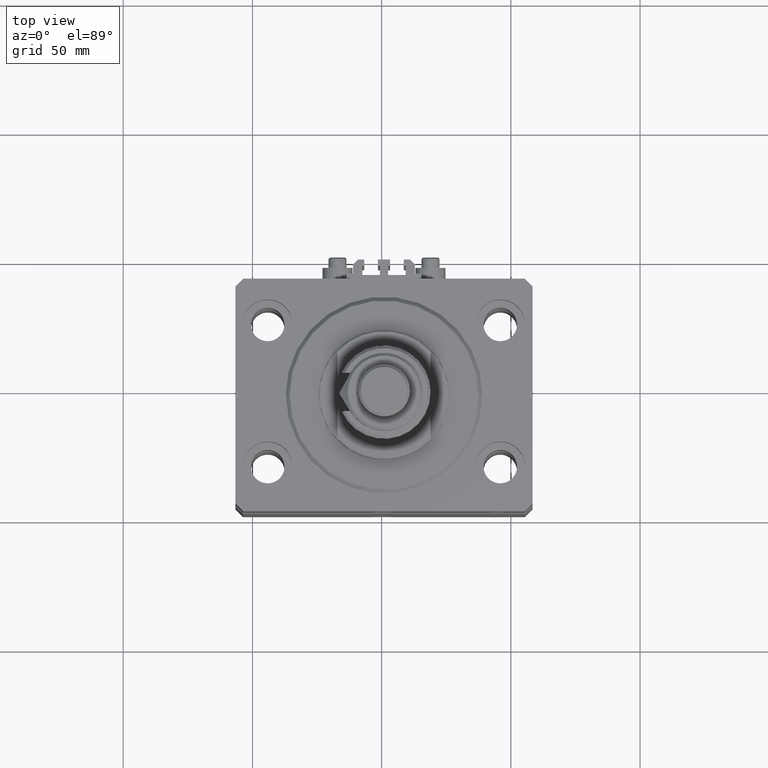
[diagram: clean part render]
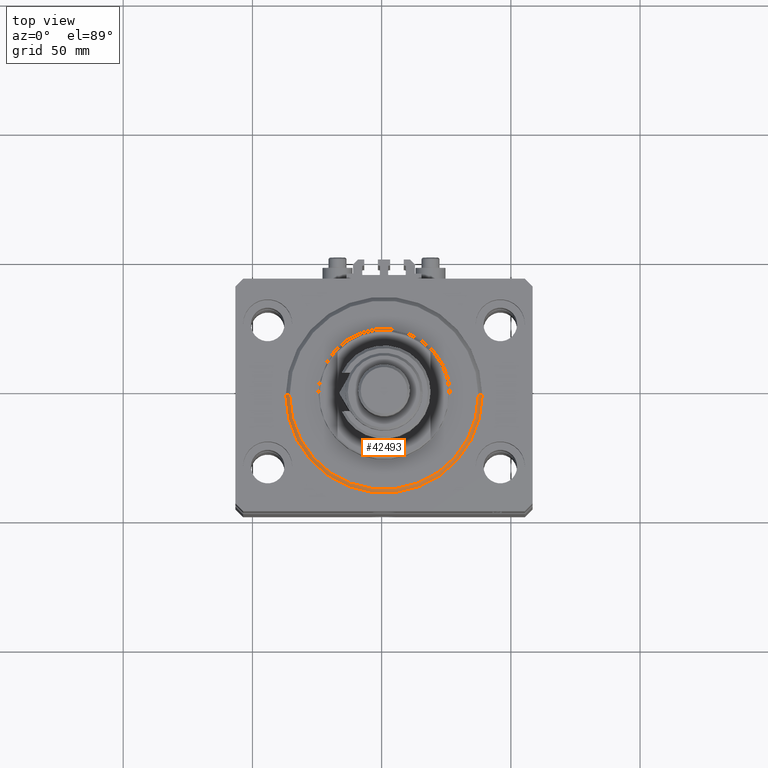
[diagram: same view with one face highlighted and labeled with its STEP entity id]
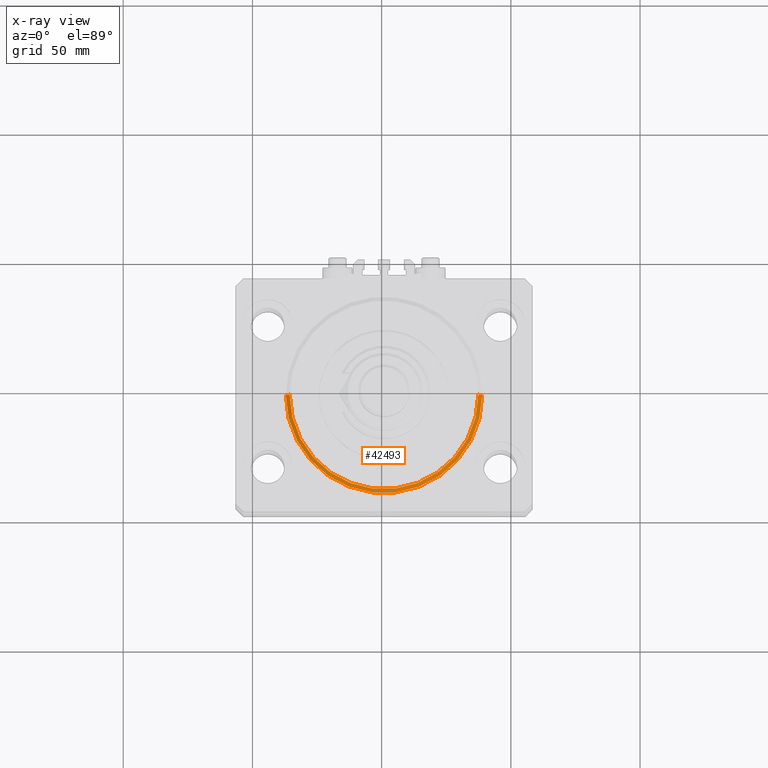
[diagram: x-ray of the same camera — body ghosted, the highlighted face saturated]
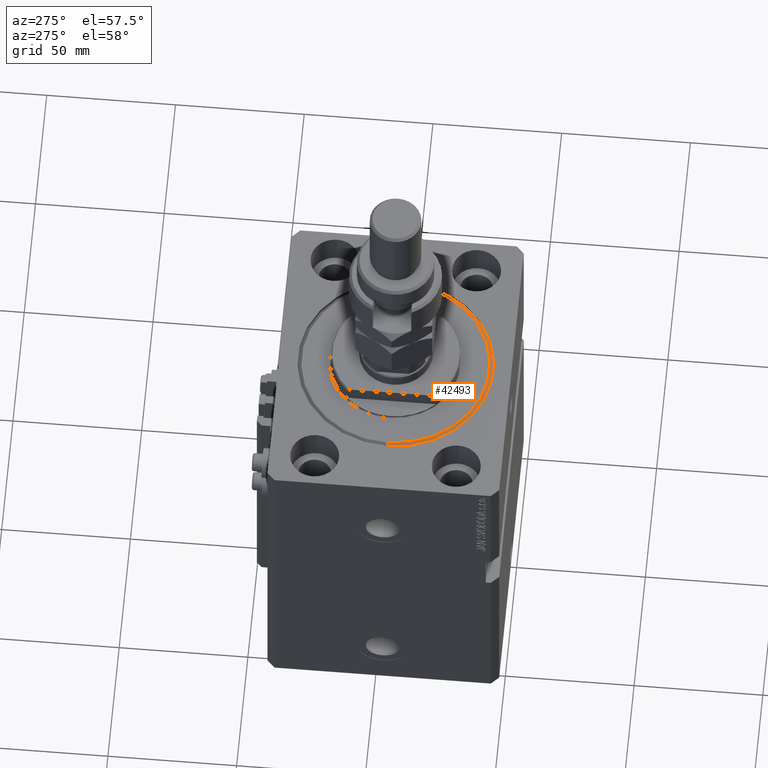
[diagram: same view with one face highlighted and labeled with its STEP entity id]
A machine part, top view. The second image highlights one B-rep face of the part: STEP entity #42493.
The next image is the same camera in x-ray: the body ghosted, the highlighted face saturated — about 0% of this face is hidden behind the body in this view.
A second angle (auxiliary view) of the same face is appended — the face is thin or edge-on in the first view.
In plain terms, the highlighted conical surface has half-angle 45 deg.
Its self-contained STEP definition (entity closure, byte-faithful):
#677 = CARTESIAN_POINT ( 'NONE',  ( 0.000000000000000000, 0.000000000000000000, 0.000000000000000000 ) ) ;
#3096 = CIRCLE ( 'NONE', #8141, 36.50000000000000000 ) ;
#3232 = LINE ( 'NONE', #7418, #5749 ) ;
#3663 = DIRECTION ( 'NONE',  ( 0.7071067811865507924, 0.000000000000000000, 0.7071067811865441310 ) ) ;
#5401 = DIRECTION ( 'NONE',  ( 1.000000000000000000, 0.000000000000000000, 0.000000000000000000 ) ) ;
#5749 = VECTOR ( 'NONE', #16006, 1000.000000000000114 ) ;
#7418 = CARTESIAN_POINT ( 'NONE',  ( -38.00000000000000000, 4.653657836759941152E-15, 1.499999999999987566 ) ) ;
#7595 = LINE ( 'NONE', #39314, #24725 ) ;
#8141 = AXIS2_PLACEMENT_3D ( 'NONE', #677, #33238, #36599 ) ;
#8317 = EDGE_CURVE ( 'NONE', #15922, #32135, #3096, .T. ) ;
#8473 = CARTESIAN_POINT ( 'NONE',  ( -38.00000000000000000, 0.000000000000000000, 1.499999999999987566 ) ) ;
#11785 = CIRCLE ( 'NONE', #38352, 38.00000000000000000 ) ;
#12845 = ORIENTED_EDGE ( 'NONE', *, *, #29948, .F. ) ;
#15921 = FACE_OUTER_BOUND ( 'NONE', #43158, .T. ) ;
#15922 = VERTEX_POINT ( 'NONE', #44229 ) ;
#16006 = DIRECTION ( 'NONE',  ( -0.7071067811865507924, 8.659560562354972301E-17, 0.7071067811865441310 ) ) ;
#16739 = VERTEX_POINT ( 'NONE', #8473 ) ;
#17306 = EDGE_CURVE ( 'NONE', #15922, #18666, #7595, .T. ) ;
#18577 = ORIENTED_EDGE ( 'NONE', *, *, #21088, .F. ) ;
#18666 = VERTEX_POINT ( 'NONE', #20870 ) ;
#20870 = CARTESIAN_POINT ( 'NONE',  ( 38.00000000000000000, 4.653657836759941941E-15, 1.499999999999987566 ) ) ;
#21088 = EDGE_CURVE ( 'NONE', #32135, #16739, #3232, .T. ) ;
#24725 = VECTOR ( 'NONE', #3663, 1000.000000000000114 ) ;
#26683 = DIRECTION ( 'NONE',  ( -0.000000000000000000, -0.000000000000000000, 1.000000000000000000 ) ) ;
#27318 = CARTESIAN_POINT ( 'NONE',  ( -36.50000000000000000, 4.561809326823889791E-15, 0.000000000000000000 ) ) ;
#29948 = EDGE_CURVE ( 'NONE', #16739, #18666, #11785, .T. ) ;
#30273 = CONICAL_SURFACE ( 'NONE', #31136, 38.00000000000000000, 0.7853981633974529419 ) ;
#31136 = AXIS2_PLACEMENT_3D ( 'NONE', #36685, #35925, #47639 ) ;
#32135 = VERTEX_POINT ( 'NONE', #27318 ) ;
#32804 = ORIENTED_EDGE ( 'NONE', *, *, #17306, .T. ) ;
#33238 = DIRECTION ( 'NONE',  ( -0.000000000000000000, -0.000000000000000000, -1.000000000000000000 ) ) ;
#35382 = ORIENTED_EDGE ( 'NONE', *, *, #8317, .F. ) ;
#35925 = DIRECTION ( 'NONE',  ( -0.000000000000000000, -0.000000000000000000, 1.000000000000000000 ) ) ;
#36599 = DIRECTION ( 'NONE',  ( 1.000000000000000000, 0.000000000000000000, 0.000000000000000000 ) ) ;
#36685 = CARTESIAN_POINT ( 'NONE',  ( 0.000000000000000000, 0.000000000000000000, 1.499999999999987566 ) ) ;
#37668 = CARTESIAN_POINT ( 'NONE',  ( 0.000000000000000000, 0.000000000000000000, 1.499999999999987566 ) ) ;
#38352 = AXIS2_PLACEMENT_3D ( 'NONE', #37668, #26683, #5401 ) ;
#39314 = CARTESIAN_POINT ( 'NONE',  ( 38.00000000000000000, 0.000000000000000000, 1.499999999999987566 ) ) ;
#42493 = ADVANCED_FACE ( 'NONE', ( #15921 ), #30273, .T. ) ;
#43158 = EDGE_LOOP ( 'NONE', ( #18577, #35382, #32804, #12845 ) ) ;
#44229 = CARTESIAN_POINT ( 'NONE',  ( 36.50000000000000000, 0.000000000000000000, 0.000000000000000000 ) ) ;
#47639 = DIRECTION ( 'NONE',  ( 1.000000000000000000, 0.000000000000000000, 0.000000000000000000 ) ) ;